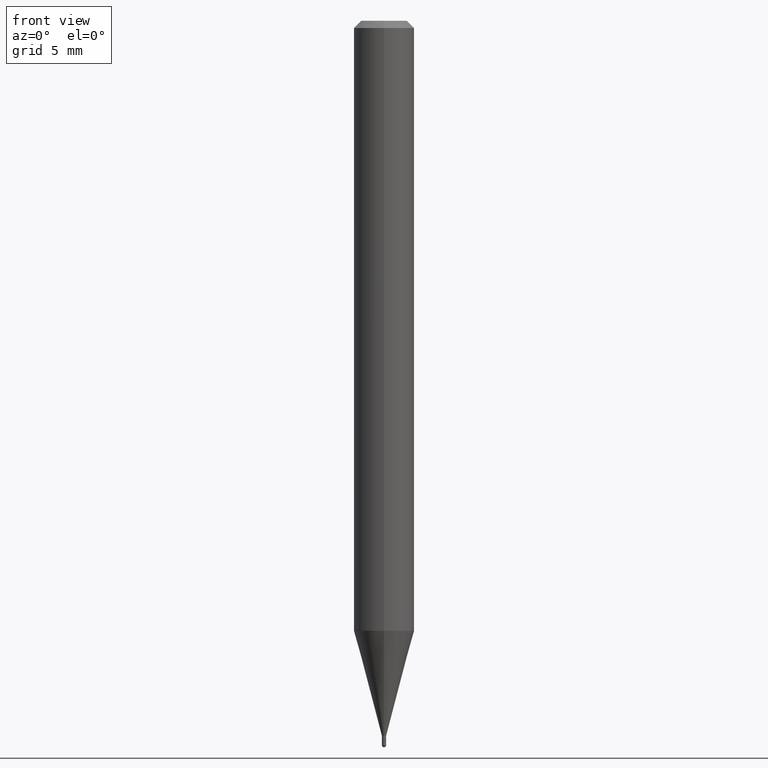
[diagram: clean part render]
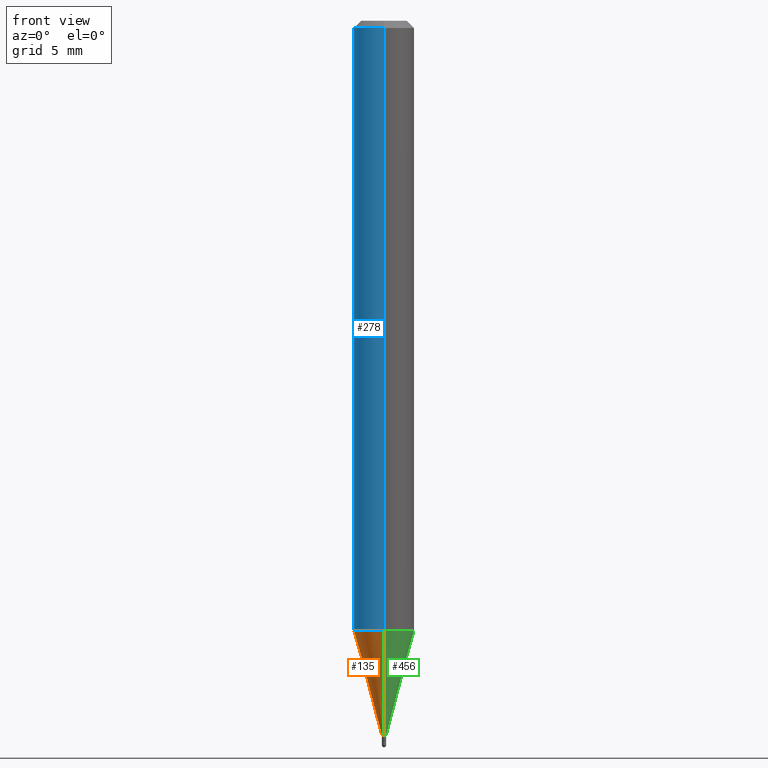
[diagram: same view with three faces highlighted in distinct colors, each labeled with its STEP entity id]
A machine part, front view with three faces highlighted in distinct colors.
Their STEP definitions:

[orange] entity #135 — the highlighted conical surface has half-angle 15 deg.
#15 = DIRECTION ( 'NONE',  ( 1.839019923739601499E-15, 0.2588190451025251249, 0.9659258262890670910 ) ) ;
#18 = EDGE_CURVE ( 'NONE', #341, #297, #497, .T. ) ;
#19 = CARTESIAN_POINT ( 'NONE',  ( -4.364351673553608052E-16, -0.06250000000000439926, -1.259541053161005397 ) ) ;
#23 = VERTEX_POINT ( 'NONE', #504 ) ;
#24 = DIRECTION ( 'NONE',  ( -2.445480569901482544E-29, 3.491464492531789239E-15, 1.000000000000000000 ) ) ;
#53 = ORIENTED_EDGE ( 'NONE', *, *, #353, .F. ) ;
#80 = CARTESIAN_POINT ( 'NONE',  ( 3.609529321174588321E-29, -5.153401590976920012E-15, -1.475999999999999979 ) ) ;
#85 = FACE_OUTER_BOUND ( 'NONE', #365, .T. ) ;
#93 = AXIS2_PLACEMENT_3D ( 'NONE', #485, #241, #127 ) ;
#101 = DIRECTION ( 'NONE',  ( -6.982962677686265922E-15, -1.000000000000000000, 4.370956789862821150E-15 ) ) ;
#127 = DIRECTION ( 'NONE',  ( -6.982962677686265922E-15, -1.000000000000000000, 0.000000000000000000 ) ) ;
#135 = ADVANCED_FACE ( 'NONE', ( #85 ), #242, .T. ) ;
#176 = CARTESIAN_POINT ( 'NONE',  ( -3.142333204955156550E-17, -0.004500000000005076328, -1.475999999999999979 ) ) ;
#180 = CARTESIAN_POINT ( 'NONE',  ( 2.380318164796668072E-16, 0.004499999999994770336, -1.475999999999999979 ) ) ;
#181 = ORIENTED_EDGE ( 'NONE', *, *, #18, .T. ) ;
#212 = VECTOR ( 'NONE', #401, 39.37007874015748854 ) ;
#224 = DIRECTION ( 'NONE',  ( -2.445480569901482544E-29, 3.491464492531789239E-15, 1.000000000000000000 ) ) ;
#233 = AXIS2_PLACEMENT_3D ( 'NONE', #80, #224, #464 ) ;
#237 = CARTESIAN_POINT ( 'NONE',  ( -3.142333204955156550E-17, -0.004500000000005076328, -1.475999999999999979 ) ) ;
#241 = DIRECTION ( 'NONE',  ( -2.445480569901482544E-29, 3.491464492531789239E-15, 1.000000000000000000 ) ) ;
#242 = CONICAL_SURFACE ( 'NONE', #93, 0.004499999999999923332, 0.2617993877991504625 ) ;
#273 = EDGE_CURVE ( 'NONE', #297, #376, #437, .T. ) ;
#297 = VERTEX_POINT ( 'NONE', #176 ) ;
#329 = CARTESIAN_POINT ( 'NONE',  ( 3.197442310924005399E-17, 0.004499999999994770336, -1.475999999999999979 ) ) ;
#341 = VERTEX_POINT ( 'NONE', #180 ) ;
#345 = EDGE_CURVE ( 'NONE', #341, #23, #379, .T. ) ;
#353 = EDGE_CURVE ( 'NONE', #23, #376, #473, .T. ) ;
#365 = EDGE_LOOP ( 'NONE', ( #378, #181, #384, #53 ) ) ;
#376 = VERTEX_POINT ( 'NONE', #19 ) ;
#378 = ORIENTED_EDGE ( 'NONE', *, *, #345, .F. ) ;
#379 = LINE ( 'NONE', #329, #429 ) ;
#384 = ORIENTED_EDGE ( 'NONE', *, *, #273, .T. ) ;
#401 = DIRECTION ( 'NONE',  ( -1.807323732225331323E-15, -0.2588190451025183525, 0.9659258262890689783 ) ) ;
#429 = VECTOR ( 'NONE', #15, 39.37007874015748854 ) ;
#437 = LINE ( 'NONE', #237, #212 ) ;
#447 = CARTESIAN_POINT ( 'NONE',  ( 3.080183172498490090E-29, -4.397642863997746383E-15, -1.259541053161005841 ) ) ;
#464 = DIRECTION ( 'NONE',  ( -6.982962677686265922E-15, -1.000000000000000000, 0.000000000000000000 ) ) ;
#465 = AXIS2_PLACEMENT_3D ( 'NONE', #447, #24, #101 ) ;
#473 = CIRCLE ( 'NONE', #465, 0.06250000000000000000 ) ;
#485 = CARTESIAN_POINT ( 'NONE',  ( 3.609529321174588321E-29, -5.153401590976920012E-15, -1.475999999999999979 ) ) ;
#497 = CIRCLE ( 'NONE', #233, 0.004499999999999923332 ) ;
#504 = CARTESIAN_POINT ( 'NONE',  ( 4.440892098500933817E-16, 0.06249999999999561462, -1.259541053161006063 ) ) ;

[blue] entity #278 — the highlighted cylindrical surface (edge-blend (fillet) strip) has radius 1.5875 mm, axis along (-0, 0, 1).
#19 = CARTESIAN_POINT ( 'NONE',  ( -4.364351673553608052E-16, -0.06250000000000439926, -1.259541053161005397 ) ) ;
#23 = VERTEX_POINT ( 'NONE', #504 ) ;
#24 = DIRECTION ( 'NONE',  ( -2.445480569901482544E-29, 3.491464492531789239E-15, 1.000000000000000000 ) ) ;
#41 = EDGE_CURVE ( 'NONE', #23, #254, #153, .T. ) ;
#44 = CARTESIAN_POINT ( 'NONE',  ( 4.440892098500935790E-16, 0.06249999999999995143, -0.01499999999999997863 ) ) ;
#48 = ORIENTED_EDGE ( 'NONE', *, *, #41, .F. ) ;
#49 = EDGE_CURVE ( 'NONE', #254, #106, #261, .T. ) ;
#68 = CYLINDRICAL_SURFACE ( 'NONE', #87, 0.06250000000000000000 ) ;
#70 = EDGE_CURVE ( 'NONE', #376, #106, #424, .T. ) ;
#87 = AXIS2_PLACEMENT_3D ( 'NONE', #105, #496, #146 ) ;
#97 = ORIENTED_EDGE ( 'NONE', *, *, #49, .F. ) ;
#101 = DIRECTION ( 'NONE',  ( -6.982962677686265922E-15, -1.000000000000000000, 4.370956789862821150E-15 ) ) ;
#105 = CARTESIAN_POINT ( 'NONE',  ( 0.000000000000000000, 0.000000000000000000, 0.000000000000000000 ) ) ;
#106 = VERTEX_POINT ( 'NONE', #486 ) ;
#118 = CARTESIAN_POINT ( 'NONE',  ( 4.440892098500625669E-16, 0.06250000000000000000, -2.182165307832368028E-16 ) ) ;
#143 = FACE_OUTER_BOUND ( 'NONE', #189, .T. ) ;
#146 = DIRECTION ( 'NONE',  ( -6.982962677686265922E-15, -1.000000000000000000, 3.491464492531788845E-15 ) ) ;
#153 = LINE ( 'NONE', #118, #369 ) ;
#189 = EDGE_LOOP ( 'NONE', ( #48, #260, #343, #97 ) ) ;
#192 = CARTESIAN_POINT ( 'NONE',  ( -4.364351673553916201E-16, -0.06250000000000000000, 2.182165307832368028E-16 ) ) ;
#193 = DIRECTION ( 'NONE',  ( -2.445480569901482544E-29, 3.491464492531789634E-15, 1.000000000000000000 ) ) ;
#226 = AXIS2_PLACEMENT_3D ( 'NONE', #388, #305, #392 ) ;
#254 = VERTEX_POINT ( 'NONE', #44 ) ;
#260 = ORIENTED_EDGE ( 'NONE', *, *, #353, .T. ) ;
#261 = CIRCLE ( 'NONE', #226, 0.06250000000000000000 ) ;
#264 = DIRECTION ( 'NONE',  ( -2.445480569901482544E-29, 3.491464492531789634E-15, 1.000000000000000000 ) ) ;
#278 = ADVANCED_FACE ( 'NONE', ( #143 ), #68, .T. ) ;
#305 = DIRECTION ( 'NONE',  ( -2.445480569901482544E-29, 3.491464492531789239E-15, 1.000000000000000000 ) ) ;
#343 = ORIENTED_EDGE ( 'NONE', *, *, #70, .T. ) ;
#353 = EDGE_CURVE ( 'NONE', #23, #376, #473, .T. ) ;
#369 = VECTOR ( 'NONE', #264, 39.37007874015748143 ) ;
#376 = VERTEX_POINT ( 'NONE', #19 ) ;
#388 = CARTESIAN_POINT ( 'NONE',  ( 3.668220854852165434E-31, -5.237196738797599944E-17, -0.01499999999999976179 ) ) ;
#392 = DIRECTION ( 'NONE',  ( -6.982962677686265922E-15, -1.000000000000000000, 3.483106191921935554E-15 ) ) ;
#424 = LINE ( 'NONE', #192, #507 ) ;
#447 = CARTESIAN_POINT ( 'NONE',  ( 3.080183172498490090E-29, -4.397642863997746383E-15, -1.259541053161005841 ) ) ;
#465 = AXIS2_PLACEMENT_3D ( 'NONE', #447, #24, #101 ) ;
#473 = CIRCLE ( 'NONE', #465, 0.06250000000000000000 ) ;
#486 = CARTESIAN_POINT ( 'NONE',  ( -4.364351673553912750E-16, -0.06250000000000005551, -0.01499999999999954321 ) ) ;
#496 = DIRECTION ( 'NONE',  ( -2.445480569901482544E-29, 3.491464492531789239E-15, 1.000000000000000000 ) ) ;
#504 = CARTESIAN_POINT ( 'NONE',  ( 4.440892098500933817E-16, 0.06249999999999561462, -1.259541053161006063 ) ) ;
#507 = VECTOR ( 'NONE', #193, 39.37007874015748143 ) ;

[green] entity #456 — the highlighted conical surface has half-angle 15 deg.
#15 = DIRECTION ( 'NONE',  ( 1.839019923739601499E-15, 0.2588190451025251249, 0.9659258262890670910 ) ) ;
#19 = CARTESIAN_POINT ( 'NONE',  ( -4.364351673553608052E-16, -0.06250000000000439926, -1.259541053161005397 ) ) ;
#21 = DIRECTION ( 'NONE',  ( -2.445480569901482544E-29, 3.491464492531789239E-15, 1.000000000000000000 ) ) ;
#23 = VERTEX_POINT ( 'NONE', #504 ) ;
#74 = ORIENTED_EDGE ( 'NONE', *, *, #345, .T. ) ;
#75 = DIRECTION ( 'NONE',  ( -6.982962677686265922E-15, -1.000000000000000000, 0.000000000000000000 ) ) ;
#119 = CIRCLE ( 'NONE', #316, 0.004499999999999923332 ) ;
#161 = CARTESIAN_POINT ( 'NONE',  ( 3.609529321174588321E-29, -5.153401590976920012E-15, -1.475999999999999979 ) ) ;
#176 = CARTESIAN_POINT ( 'NONE',  ( -3.142333204955156550E-17, -0.004500000000005076328, -1.475999999999999979 ) ) ;
#180 = CARTESIAN_POINT ( 'NONE',  ( 2.380318164796668072E-16, 0.004499999999994770336, -1.475999999999999979 ) ) ;
#185 = AXIS2_PLACEMENT_3D ( 'NONE', #188, #387, #383 ) ;
#188 = CARTESIAN_POINT ( 'NONE',  ( 3.609529321174588321E-29, -5.153401590976920012E-15, -1.475999999999999979 ) ) ;
#212 = VECTOR ( 'NONE', #401, 39.37007874015748854 ) ;
#237 = CARTESIAN_POINT ( 'NONE',  ( -3.142333204955156550E-17, -0.004500000000005076328, -1.475999999999999979 ) ) ;
#259 = DIRECTION ( 'NONE',  ( -2.445480569901482544E-29, 3.491464492531789239E-15, 1.000000000000000000 ) ) ;
#269 = AXIS2_PLACEMENT_3D ( 'NONE', #414, #21, #339 ) ;
#273 = EDGE_CURVE ( 'NONE', #297, #376, #437, .T. ) ;
#297 = VERTEX_POINT ( 'NONE', #176 ) ;
#301 = ORIENTED_EDGE ( 'NONE', *, *, #438, .F. ) ;
#316 = AXIS2_PLACEMENT_3D ( 'NONE', #161, #259, #75 ) ;
#329 = CARTESIAN_POINT ( 'NONE',  ( 3.197442310924005399E-17, 0.004499999999994770336, -1.475999999999999979 ) ) ;
#337 = EDGE_LOOP ( 'NONE', ( #423, #74, #301, #448 ) ) ;
#339 = DIRECTION ( 'NONE',  ( -6.982962677686265922E-15, -1.000000000000000000, 4.370956789862821150E-15 ) ) ;
#341 = VERTEX_POINT ( 'NONE', #180 ) ;
#345 = EDGE_CURVE ( 'NONE', #341, #23, #379, .T. ) ;
#376 = VERTEX_POINT ( 'NONE', #19 ) ;
#379 = LINE ( 'NONE', #329, #429 ) ;
#383 = DIRECTION ( 'NONE',  ( -6.982962677686265922E-15, -1.000000000000000000, 0.000000000000000000 ) ) ;
#387 = DIRECTION ( 'NONE',  ( -2.445480569901482544E-29, 3.491464492531789239E-15, 1.000000000000000000 ) ) ;
#401 = DIRECTION ( 'NONE',  ( -1.807323732225331323E-15, -0.2588190451025183525, 0.9659258262890689783 ) ) ;
#405 = CONICAL_SURFACE ( 'NONE', #185, 0.004499999999999923332, 0.2617993877991504625 ) ;
#414 = CARTESIAN_POINT ( 'NONE',  ( 3.080183172498490090E-29, -4.397642863997746383E-15, -1.259541053161005841 ) ) ;
#423 = ORIENTED_EDGE ( 'NONE', *, *, #470, .T. ) ;
#429 = VECTOR ( 'NONE', #15, 39.37007874015748854 ) ;
#437 = LINE ( 'NONE', #237, #212 ) ;
#438 = EDGE_CURVE ( 'NONE', #376, #23, #489, .T. ) ;
#448 = ORIENTED_EDGE ( 'NONE', *, *, #273, .F. ) ;
#456 = ADVANCED_FACE ( 'NONE', ( #474 ), #405, .T. ) ;
#470 = EDGE_CURVE ( 'NONE', #297, #341, #119, .T. ) ;
#474 = FACE_OUTER_BOUND ( 'NONE', #337, .T. ) ;
#489 = CIRCLE ( 'NONE', #269, 0.06250000000000000000 ) ;
#504 = CARTESIAN_POINT ( 'NONE',  ( 4.440892098500933817E-16, 0.06249999999999561462, -1.259541053161006063 ) ) ;